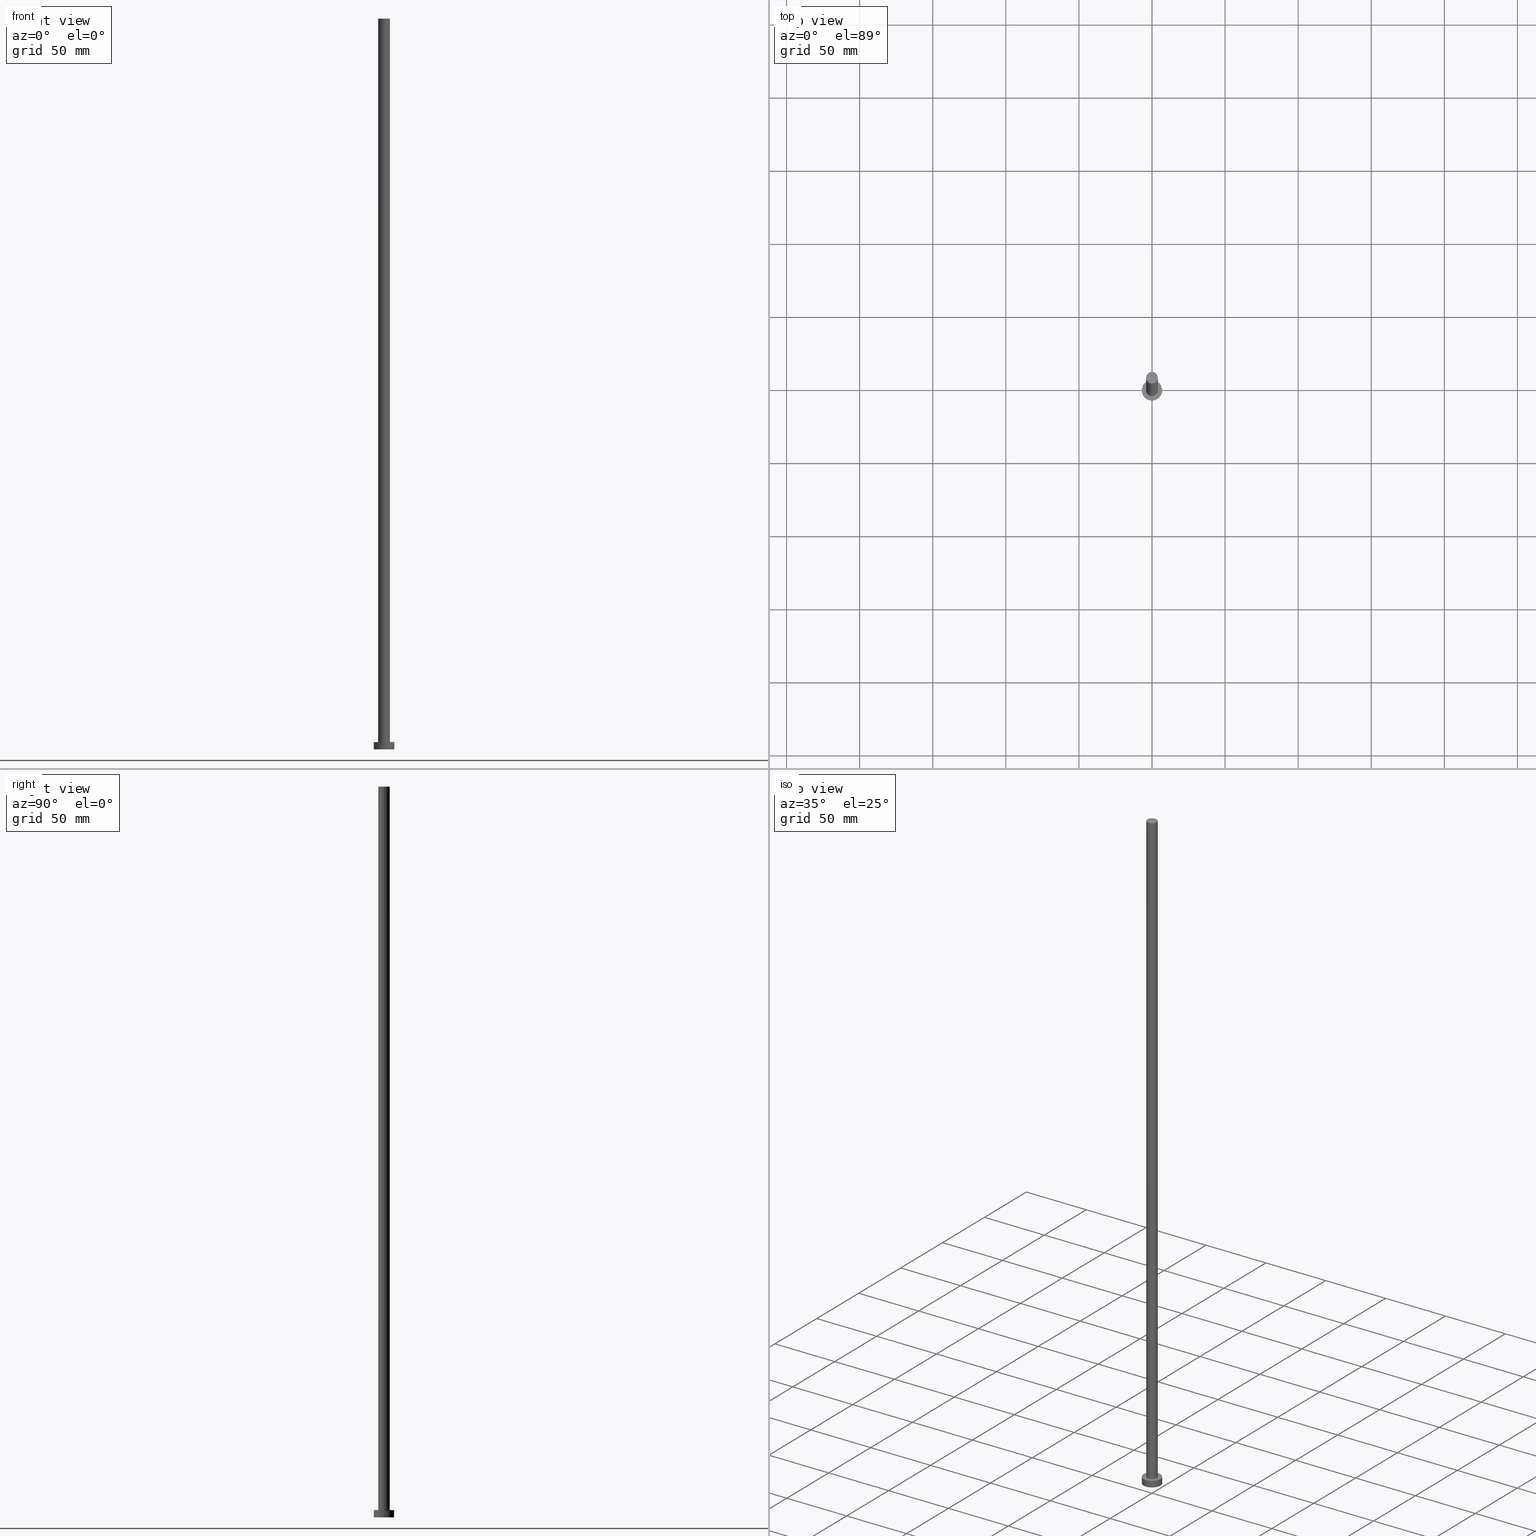
[diagram: canonical four-view strip — front | top / right | iso, engineering-drawing reading convention]
A machine part, canonical four-view strip (front | top / right | iso — engineering-drawing reading convention). The complete STEP part file that produces these views, byte-faithful:
ISO-10303-21;
HEADER;
FILE_DESCRIPTION (( 'STEP AP203' ),
    '1' );
FILE_NAME ('98df.STEP',
    '2023-02-13T12:56:17',
    ( '' ),
    ( '' ),
    'SwSTEP 2.0',
    'SolidWorks 2019',
    '' );
FILE_SCHEMA (( 'CONFIG_CONTROL_DESIGN' ));
ENDSEC;

DATA;
#1 = CARTESIAN_POINT ( 'NONE',  ( 0.000000000000000000, 0.000000000000000000, 5.000000000000000000 ) ) ;
#2 = ADVANCED_FACE ( 'NONE', ( #240 ), #38, .T. ) ;
#3 = DIRECTION ( 'NONE',  ( 1.000000000000000000, 0.000000000000000000, 0.000000000000000000 ) ) ;
#4 = ORIENTED_EDGE ( 'NONE', *, *, #29, .F. ) ;
#5 = PERSON_AND_ORGANIZATION ( #75, #144 ) ;
#6 = VERTEX_POINT ( 'NONE', #229 ) ;
#7 = AXIS2_PLACEMENT_3D ( 'NONE', #56, #58, #102 ) ;
#8 = ORIENTED_EDGE ( 'NONE', *, *, #16, .T. ) ;
#9 = VECTOR ( 'NONE', #28, 1000.000000000000000 ) ;
#10 = ORIENTED_EDGE ( 'NONE', *, *, #177, .T. ) ;
#11 = VERTEX_POINT ( 'NONE', #169 ) ;
#12 = CC_DESIGN_PERSON_AND_ORGANIZATION_ASSIGNMENT ( #5, #69, ( #100 ) ) ;
#13 = AXIS2_PLACEMENT_3D ( 'NONE', #53, #178, #170 ) ;
#14 = LOCAL_TIME ( 13, 56, 17.00000000000000000, #48 ) ;
#15 = CARTESIAN_POINT ( 'NONE',  ( 7.000000000000000000, 8.572527594031473190E-16, 5.000000000000000000 ) ) ;
#16 = EDGE_CURVE ( 'NONE', #246, #192, #21, .T. ) ;
#17 =( GEOMETRIC_REPRESENTATION_CONTEXT ( 3 ) GLOBAL_UNCERTAINTY_ASSIGNED_CONTEXT ( ( #39 ) ) GLOBAL_UNIT_ASSIGNED_CONTEXT ( ( #101, #128, #184 ) ) REPRESENTATION_CONTEXT ( 'NONE', 'WORKASPACE' ) );
#18 = AXIS2_PLACEMENT_3D ( 'NONE', #108, #250, #134 ) ;
#19 = DIRECTION ( 'NONE',  ( -0.000000000000000000, -0.000000000000000000, -1.000000000000000000 ) ) ;
#20 = PERSON_AND_ORGANIZATION ( #75, #144 ) ;
#21 = CIRCLE ( 'NONE', #35, 4.000000000000000000 ) ;
#22 = APPROVAL_ROLE ( '' ) ;
#23 = CARTESIAN_POINT ( 'NONE',  ( 0.000000000000000000, 0.000000000000000000, 5.000000000000000000 ) ) ;
#24 = EDGE_CURVE ( 'NONE', #192, #153, #99, .T. ) ;
#25 = FACE_OUTER_BOUND ( 'NONE', #135, .T. ) ;
#26 = EDGE_LOOP ( 'NONE', ( #227, #70 ) ) ;
#27 = CARTESIAN_POINT ( 'NONE',  ( -4.000000000000000000, 0.000000000000000000, 500.0000000000000000 ) ) ;
#28 = DIRECTION ( 'NONE',  ( -0.000000000000000000, -0.000000000000000000, -1.000000000000000000 ) ) ;
#29 = EDGE_CURVE ( 'NONE', #153, #11, #66, .T. ) ;
#30 = AXIS2_PLACEMENT_3D ( 'NONE', #125, #90, #207 ) ;
#31 = DIRECTION ( 'NONE',  ( 0.000000000000000000, 0.000000000000000000, 1.000000000000000000 ) ) ;
#32 = CARTESIAN_POINT ( 'NONE',  ( 4.000000000000000000, 4.898587196589412829E-16, 500.0000000000000000 ) ) ;
#33 = LINE ( 'NONE', #203, #9 ) ;
#34 = CC_DESIGN_APPROVAL ( #76, ( #100 ) ) ;
#35 = AXIS2_PLACEMENT_3D ( 'NONE', #204, #156, #113 ) ;
#36 = EDGE_CURVE ( 'NONE', #11, #153, #89, .T. ) ;
#37 = APPROVAL_ROLE ( '' ) ;
#38 = CYLINDRICAL_SURFACE ( 'NONE', #30, 7.000000000000000000 ) ;
#39 = UNCERTAINTY_MEASURE_WITH_UNIT (LENGTH_MEASURE( 1.000000000000000082E-05 ), #101, 'distance_accuracy_value', 'NONE');
#40 = PERSON_AND_ORGANIZATION ( #75, #144 ) ;
#41 = SECURITY_CLASSIFICATION ( '', '', #210 ) ;
#42 = DATE_TIME_ROLE ( 'creation_date' ) ;
#43 = CC_DESIGN_PERSON_AND_ORGANIZATION_ASSIGNMENT ( #228, #165, ( #187 ) ) ;
#44 = APPROVAL_STATUS ( 'not_yet_approved' ) ;
#45 = CARTESIAN_POINT ( 'NONE',  ( 0.000000000000000000, 0.000000000000000000, 500.0000000000000000 ) ) ;
#46 = CC_DESIGN_SECURITY_CLASSIFICATION ( #41, ( #100 ) ) ;
#47 = DIRECTION ( 'NONE',  ( -1.000000000000000000, 0.000000000000000000, 0.000000000000000000 ) ) ;
#48 = COORDINATED_UNIVERSAL_TIME_OFFSET ( 1, 0, .AHEAD. ) ;
#49 = CARTESIAN_POINT ( 'NONE',  ( -7.000000000000000000, 0.000000000000000000, 5.000000000000000000 ) ) ;
#50 = ORIENTED_EDGE ( 'NONE', *, *, #36, .T. ) ;
#51 = EDGE_CURVE ( 'NONE', #77, #6, #195, .T. ) ;
#52 = EDGE_LOOP ( 'NONE', ( #110, #158, #194, #95 ) ) ;
#53 = CARTESIAN_POINT ( 'NONE',  ( 0.000000000000000000, 0.000000000000000000, 5.000000000000000000 ) ) ;
#54 = VECTOR ( 'NONE', #19, 1000.000000000000000 ) ;
#55 = DIRECTION ( 'NONE',  ( 0.000000000000000000, 0.000000000000000000, 1.000000000000000000 ) ) ;
#56 = CARTESIAN_POINT ( 'NONE',  ( 0.000000000000000000, 0.000000000000000000, 0.000000000000000000 ) ) ;
#57 = LOCAL_TIME ( 13, 56, 17.00000000000000000, #247 ) ;
#58 = DIRECTION ( 'NONE',  ( 0.000000000000000000, 0.000000000000000000, 1.000000000000000000 ) ) ;
#59 = DIRECTION ( 'NONE',  ( -0.000000000000000000, -0.000000000000000000, -1.000000000000000000 ) ) ;
#60 = PERSON_AND_ORGANIZATION ( #75, #144 ) ;
#61 = AXIS2_PLACEMENT_3D ( 'NONE', #23, #174, #109 ) ;
#62 = CC_DESIGN_PERSON_AND_ORGANIZATION_ASSIGNMENT ( #60, #149, ( #100 ) ) ;
#63 = CALENDAR_DATE ( 2023, 13, 2 ) ;
#64 = DATE_AND_TIME ( #225, #162 ) ;
#65 = EDGE_CURVE ( 'NONE', #217, #6, #166, .T. ) ;
#66 = CIRCLE ( 'NONE', #61, 4.000000000000000000 ) ;
#67 = COORDINATED_UNIVERSAL_TIME_OFFSET ( 1, 0, .AHEAD. ) ;
#68 = PLANE ( 'NONE',  #126 ) ;
#69 = PERSON_AND_ORGANIZATION_ROLE ( 'design_supplier' ) ;
#70 = ORIENTED_EDGE ( 'NONE', *, *, #65, .F. ) ;
#71 = SHAPE_DEFINITION_REPRESENTATION ( #116, #188 ) ;
#72 = DIRECTION ( 'NONE',  ( 0.000000000000000000, 0.000000000000000000, 1.000000000000000000 ) ) ;
#73 = EDGE_LOOP ( 'NONE', ( #91, #4 ) ) ;
#74 = APPLICATION_CONTEXT ( 'configuration controlled 3d designs of mechanical parts and assemblies' ) ;
#75 = PERSON ( 'NEUR�EN�', 'NEUR�EN�', 'NEUR�EN�', ('NEUR�EN�'), ('NEUR�EN�'), ('NEUR�EN�') ) ;
#76 = APPROVAL ( #150, 'NEUR�EN�' ) ;
#77 = VERTEX_POINT ( 'NONE', #49 ) ;
#78 = ADVANCED_FACE ( 'NONE', ( #25 ), #97, .T. ) ;
#79 = DIRECTION ( 'NONE',  ( 0.000000000000000000, 0.000000000000000000, 1.000000000000000000 ) ) ;
#80 = MANIFOLD_SOLID_BREP ( 'P�idat vysunut�m3', #221 ) ;
#81 = CC_DESIGN_DATE_AND_TIME_ASSIGNMENT ( #154, #93, ( #41 ) ) ;
#82 = FACE_OUTER_BOUND ( 'NONE', #176, .T. ) ;
#83 = APPROVAL_PERSON_ORGANIZATION ( #133, #223, #22 ) ;
#84 = APPROVAL_ROLE ( '' ) ;
#85 = DATE_AND_TIME ( #168, #179 ) ;
#86 = CIRCLE ( 'NONE', #185, 7.000000000000000000 ) ;
#87 = EDGE_CURVE ( 'NONE', #6, #217, #86, .T. ) ;
#88 = AXIS2_PLACEMENT_3D ( 'NONE', #159, #79, #235 ) ;
#89 = CIRCLE ( 'NONE', #13, 4.000000000000000000 ) ;
#90 = DIRECTION ( 'NONE',  ( -0.000000000000000000, -0.000000000000000000, -1.000000000000000000 ) ) ;
#91 = ORIENTED_EDGE ( 'NONE', *, *, #36, .F. ) ;
#92 = CARTESIAN_POINT ( 'NONE',  ( 4.000000000000000000, 4.898587196589412829E-16, 500.0000000000000000 ) ) ;
#93 = DATE_TIME_ROLE ( 'classification_date' ) ;
#94 = CIRCLE ( 'NONE', #202, 7.000000000000000000 ) ;
#95 = ORIENTED_EDGE ( 'NONE', *, *, #87, .T. ) ;
#96 = APPROVAL_STATUS ( 'not_yet_approved' ) ;
#97 = CYLINDRICAL_SURFACE ( 'NONE', #237, 4.000000000000000000 ) ;
#98 = ORIENTED_EDGE ( 'NONE', *, *, #244, .T. ) ;
#99 = LINE ( 'NONE', #92, #206 ) ;
#100 = PRODUCT_DEFINITION_FORMATION_WITH_SPECIFIED_SOURCE ( 'LIBOVOLN�', '', #191, .NOT_KNOWN. ) ;
#101 =( LENGTH_UNIT ( ) NAMED_UNIT ( * ) SI_UNIT ( .MILLI., .METRE. ) );
#102 = DIRECTION ( 'NONE',  ( 1.000000000000000000, 0.000000000000000000, -0.000000000000000000 ) ) ;
#103 = ADVANCED_FACE ( 'NONE', ( #155 ), #68, .T. ) ;
#104 = CARTESIAN_POINT ( 'NONE',  ( 0.000000000000000000, 0.000000000000000000, 5.000000000000000000 ) ) ;
#105 = CARTESIAN_POINT ( 'NONE',  ( 0.000000000000000000, 0.000000000000000000, 5.000000000000000000 ) ) ;
#106 = DESIGN_CONTEXT ( 'detailed design', #74, 'design' ) ;
#107 = PERSON_AND_ORGANIZATION ( #75, #144 ) ;
#108 = CARTESIAN_POINT ( 'NONE',  ( 0.000000000000000000, 0.000000000000000000, 0.000000000000000000 ) ) ;
#109 = DIRECTION ( 'NONE',  ( 1.000000000000000000, 0.000000000000000000, 0.000000000000000000 ) ) ;
#110 = ORIENTED_EDGE ( 'NONE', *, *, #122, .F. ) ;
#111 = CALENDAR_DATE ( 2023, 13, 2 ) ;
#112 = ORIENTED_EDGE ( 'NONE', *, *, #24, .F. ) ;
#113 = DIRECTION ( 'NONE',  ( 1.000000000000000000, 0.000000000000000000, 0.000000000000000000 ) ) ;
#114 = ORIENTED_EDGE ( 'NONE', *, *, #160, .T. ) ;
#115 = ADVANCED_FACE ( 'NONE', ( #200 ), #119, .F. ) ;
#116 = PRODUCT_DEFINITION_SHAPE ( 'NONE', 'NONE',  #187 ) ;
#117 = PLANE ( 'NONE',  #127 ) ;
#118 = AXIS2_PLACEMENT_3D ( 'NONE', #183, #59, #147 ) ;
#119 = PLANE ( 'NONE',  #7 ) ;
#120 = FACE_OUTER_BOUND ( 'NONE', #243, .T. ) ;
#121 = CARTESIAN_POINT ( 'NONE',  ( 7.000000000000000000, 8.572527594031473190E-16, 5.000000000000000000 ) ) ;
#122 = EDGE_CURVE ( 'NONE', #132, #217, #181, .T. ) ;
#123 = APPROVAL_DATE_TIME ( #85, #146 ) ;
#124 = MECHANICAL_CONTEXT ( 'NONE', #218, 'mechanical' ) ;
#125 = CARTESIAN_POINT ( 'NONE',  ( 0.000000000000000000, 0.000000000000000000, 5.000000000000000000 ) ) ;
#126 = AXIS2_PLACEMENT_3D ( 'NONE', #193, #31, #138 ) ;
#127 = AXIS2_PLACEMENT_3D ( 'NONE', #1, #180, #161 ) ;
#128 =( NAMED_UNIT ( * ) PLANE_ANGLE_UNIT ( ) SI_UNIT ( $, .RADIAN. ) );
#129 = DATE_AND_TIME ( #63, #238 ) ;
#130 = APPROVAL_PERSON_ORGANIZATION ( #107, #76, #84 ) ;
#131 = ORIENTED_EDGE ( 'NONE', *, *, #177, .F. ) ;
#132 = VERTEX_POINT ( 'NONE', #121 ) ;
#133 = PERSON_AND_ORGANIZATION ( #75, #144 ) ;
#134 = DIRECTION ( 'NONE',  ( 1.000000000000000000, 0.000000000000000000, 0.000000000000000000 ) ) ;
#135 = EDGE_LOOP ( 'NONE', ( #251, #232, #137, #212 ) ) ;
#136 = AXIS2_PLACEMENT_3D ( 'NONE', #104, #239, #145 ) ;
#137 = ORIENTED_EDGE ( 'NONE', *, *, #29, .T. ) ;
#138 = DIRECTION ( 'NONE',  ( 1.000000000000000000, 0.000000000000000000, -0.000000000000000000 ) ) ;
#139 = ORIENTED_EDGE ( 'NONE', *, *, #224, .T. ) ;
#140 = CC_DESIGN_PERSON_AND_ORGANIZATION_ASSIGNMENT ( #197, #231, ( #41 ) ) ;
#141 = CARTESIAN_POINT ( 'NONE',  ( 4.000000000000000000, 4.898587196589412829E-16, 5.000000000000000000 ) ) ;
#142 = DIRECTION ( 'NONE',  ( -0.000000000000000000, -0.000000000000000000, -1.000000000000000000 ) ) ;
#143 = ADVANCED_FACE ( 'NONE', ( #182 ), #236, .T. ) ;
#144 = ORGANIZATION ( 'NEUR�EN�', 'NEUR�EN�', '' ) ;
#145 = DIRECTION ( 'NONE',  ( 1.000000000000000000, 0.000000000000000000, 0.000000000000000000 ) ) ;
#146 = APPROVAL ( #44, 'NEUR�EN�' ) ;
#147 = DIRECTION ( 'NONE',  ( -1.000000000000000000, 0.000000000000000000, 0.000000000000000000 ) ) ;
#148 = COORDINATED_UNIVERSAL_TIME_OFFSET ( 1, 0, .AHEAD. ) ;
#149 = PERSON_AND_ORGANIZATION_ROLE ( 'creator' ) ;
#150 = APPROVAL_STATUS ( 'not_yet_approved' ) ;
#151 = DATE_AND_TIME ( #152, #14 ) ;
#152 = CALENDAR_DATE ( 2023, 13, 2 ) ;
#153 = VERTEX_POINT ( 'NONE', #141 ) ;
#154 = DATE_AND_TIME ( #111, #57 ) ;
#155 = FACE_OUTER_BOUND ( 'NONE', #234, .T. ) ;
#156 = DIRECTION ( 'NONE',  ( 0.000000000000000000, 0.000000000000000000, 1.000000000000000000 ) ) ;
#157 = ADVANCED_FACE ( 'NONE', ( #254, #82 ), #117, .T. ) ;
#158 = ORIENTED_EDGE ( 'NONE', *, *, #160, .F. ) ;
#159 = CARTESIAN_POINT ( 'NONE',  ( 0.000000000000000000, 0.000000000000000000, 500.0000000000000000 ) ) ;
#160 = EDGE_CURVE ( 'NONE', #77, #132, #252, .T. ) ;
#161 = DIRECTION ( 'NONE',  ( 1.000000000000000000, 0.000000000000000000, -0.000000000000000000 ) ) ;
#162 = LOCAL_TIME ( 13, 56, 17.00000000000000000, #230 ) ;
#163 = APPROVAL_DATE_TIME ( #129, #76 ) ;
#164 = EDGE_LOOP ( 'NONE', ( #131, #248, #215, #249 ) ) ;
#165 = PERSON_AND_ORGANIZATION_ROLE ( 'creator' ) ;
#166 = CIRCLE ( 'NONE', #18, 7.000000000000000000 ) ;
#167 = CC_DESIGN_APPROVAL ( #223, ( #41 ) ) ;
#168 = CALENDAR_DATE ( 2023, 13, 2 ) ;
#169 = CARTESIAN_POINT ( 'NONE',  ( -4.000000000000000000, 0.000000000000000000, 5.000000000000000000 ) ) ;
#170 = DIRECTION ( 'NONE',  ( 1.000000000000000000, 0.000000000000000000, 0.000000000000000000 ) ) ;
#171 = APPROVAL_DATE_TIME ( #151, #223 ) ;
#172 = VECTOR ( 'NONE', #199, 1000.000000000000000 ) ;
#173 = APPROVAL_PERSON_ORGANIZATION ( #40, #146, #37 ) ;
#174 = DIRECTION ( 'NONE',  ( 0.000000000000000000, 0.000000000000000000, 1.000000000000000000 ) ) ;
#175 = ORIENTED_EDGE ( 'NONE', *, *, #16, .F. ) ;
#176 = EDGE_LOOP ( 'NONE', ( #114, #10 ) ) ;
#177 = EDGE_CURVE ( 'NONE', #132, #77, #94, .T. ) ;
#178 = DIRECTION ( 'NONE',  ( 0.000000000000000000, 0.000000000000000000, 1.000000000000000000 ) ) ;
#179 = LOCAL_TIME ( 13, 56, 17.00000000000000000, #148 ) ;
#180 = DIRECTION ( 'NONE',  ( 0.000000000000000000, 0.000000000000000000, 1.000000000000000000 ) ) ;
#181 = LINE ( 'NONE', #15, #54 ) ;
#182 = FACE_OUTER_BOUND ( 'NONE', #164, .T. ) ;
#183 = CARTESIAN_POINT ( 'NONE',  ( 0.000000000000000000, 0.000000000000000000, 500.0000000000000000 ) ) ;
#184 =( NAMED_UNIT ( * ) SI_UNIT ( $, .STERADIAN. ) SOLID_ANGLE_UNIT ( ) );
#185 = AXIS2_PLACEMENT_3D ( 'NONE', #233, #72, #3 ) ;
#186 = APPLICATION_PROTOCOL_DEFINITION ( 'international standard', 'config_control_design', 1994, #218 ) ;
#187 = PRODUCT_DEFINITION ( 'NEZN�M�', '', #100, #106 ) ;
#188 = ADVANCED_BREP_SHAPE_REPRESENTATION ( '98df', ( #80, #222 ), #17 ) ;
#189 = CC_DESIGN_DATE_AND_TIME_ASSIGNMENT ( #64, #42, ( #187 ) ) ;
#190 = DIRECTION ( 'NONE',  ( -0.000000000000000000, -0.000000000000000000, -1.000000000000000000 ) ) ;
#191 = PRODUCT ( '98df', '98df', '', ( #124 ) ) ;
#192 = VERTEX_POINT ( 'NONE', #32 ) ;
#193 = CARTESIAN_POINT ( 'NONE',  ( 0.000000000000000000, 0.000000000000000000, 500.0000000000000000 ) ) ;
#194 = ORIENTED_EDGE ( 'NONE', *, *, #51, .T. ) ;
#195 = LINE ( 'NONE', #214, #172 ) ;
#196 = AXIS2_PLACEMENT_3D ( 'NONE', #105, #142, #219 ) ;
#197 = PERSON_AND_ORGANIZATION ( #75, #144 ) ;
#198 = CC_DESIGN_PERSON_AND_ORGANIZATION_ASSIGNMENT ( #20, #242, ( #191 ) ) ;
#199 = DIRECTION ( 'NONE',  ( -0.000000000000000000, -0.000000000000000000, -1.000000000000000000 ) ) ;
#200 = FACE_OUTER_BOUND ( 'NONE', #26, .T. ) ;
#201 = CYLINDRICAL_SURFACE ( 'NONE', #118, 4.000000000000000000 ) ;
#202 = AXIS2_PLACEMENT_3D ( 'NONE', #220, #55, #253 ) ;
#203 = CARTESIAN_POINT ( 'NONE',  ( -4.000000000000000000, 0.000000000000000000, 500.0000000000000000 ) ) ;
#204 = CARTESIAN_POINT ( 'NONE',  ( 0.000000000000000000, 0.000000000000000000, 500.0000000000000000 ) ) ;
#205 = DIRECTION ( 'NONE',  ( 1.000000000000000000, 0.000000000000000000, 0.000000000000000000 ) ) ;
#206 = VECTOR ( 'NONE', #245, 1000.000000000000000 ) ;
#207 = DIRECTION ( 'NONE',  ( -1.000000000000000000, 0.000000000000000000, 0.000000000000000000 ) ) ;
#208 = DIRECTION ( 'NONE',  ( 0.000000000000000000, 0.000000000000000000, 1.000000000000000000 ) ) ;
#209 = PRODUCT_RELATED_PRODUCT_CATEGORY ( 'detail', '', ( #191 ) ) ;
#210 = SECURITY_CLASSIFICATION_LEVEL ( 'unclassified' ) ;
#211 = CC_DESIGN_APPROVAL ( #146, ( #187 ) ) ;
#212 = ORIENTED_EDGE ( 'NONE', *, *, #224, .F. ) ;
#213 = ADVANCED_FACE ( 'NONE', ( #120 ), #201, .T. ) ;
#214 = CARTESIAN_POINT ( 'NONE',  ( -7.000000000000000000, 0.000000000000000000, 5.000000000000000000 ) ) ;
#215 = ORIENTED_EDGE ( 'NONE', *, *, #65, .T. ) ;
#216 = CARTESIAN_POINT ( 'NONE',  ( 7.000000000000000000, 8.572527594031473190E-16, 0.000000000000000000 ) ) ;
#217 = VERTEX_POINT ( 'NONE', #216 ) ;
#218 = APPLICATION_CONTEXT ( 'configuration controlled 3d designs of mechanical parts and assemblies' ) ;
#219 = DIRECTION ( 'NONE',  ( -1.000000000000000000, 0.000000000000000000, 0.000000000000000000 ) ) ;
#220 = CARTESIAN_POINT ( 'NONE',  ( 0.000000000000000000, 0.000000000000000000, 5.000000000000000000 ) ) ;
#221 = CLOSED_SHELL ( 'NONE', ( #78, #143, #2, #157, #115, #213, #103 ) ) ;
#222 = AXIS2_PLACEMENT_3D ( 'NONE', #241, #208, #205 ) ;
#223 = APPROVAL ( #96, 'NEUR�EN�' ) ;
#224 = EDGE_CURVE ( 'NONE', #246, #11, #33, .T. ) ;
#225 = CALENDAR_DATE ( 2023, 13, 2 ) ;
#226 = APPLICATION_PROTOCOL_DEFINITION ( 'international standard', 'config_control_design', 1994, #74 ) ;
#227 = ORIENTED_EDGE ( 'NONE', *, *, #87, .F. ) ;
#228 = PERSON_AND_ORGANIZATION ( #75, #144 ) ;
#229 = CARTESIAN_POINT ( 'NONE',  ( -7.000000000000000000, 0.000000000000000000, 0.000000000000000000 ) ) ;
#230 = COORDINATED_UNIVERSAL_TIME_OFFSET ( 1, 0, .AHEAD. ) ;
#231 = PERSON_AND_ORGANIZATION_ROLE ( 'classification_officer' ) ;
#232 = ORIENTED_EDGE ( 'NONE', *, *, #24, .T. ) ;
#233 = CARTESIAN_POINT ( 'NONE',  ( 0.000000000000000000, 0.000000000000000000, 0.000000000000000000 ) ) ;
#234 = EDGE_LOOP ( 'NONE', ( #8, #98 ) ) ;
#235 = DIRECTION ( 'NONE',  ( 1.000000000000000000, 0.000000000000000000, 0.000000000000000000 ) ) ;
#236 = CYLINDRICAL_SURFACE ( 'NONE', #196, 7.000000000000000000 ) ;
#237 = AXIS2_PLACEMENT_3D ( 'NONE', #45, #190, #47 ) ;
#238 = LOCAL_TIME ( 13, 56, 17.00000000000000000, #67 ) ;
#239 = DIRECTION ( 'NONE',  ( 0.000000000000000000, 0.000000000000000000, 1.000000000000000000 ) ) ;
#240 = FACE_OUTER_BOUND ( 'NONE', #52, .T. ) ;
#241 = CARTESIAN_POINT ( 'NONE',  ( 0.000000000000000000, 0.000000000000000000, 0.000000000000000000 ) ) ;
#242 = PERSON_AND_ORGANIZATION_ROLE ( 'design_owner' ) ;
#243 = EDGE_LOOP ( 'NONE', ( #112, #175, #139, #50 ) ) ;
#244 = EDGE_CURVE ( 'NONE', #192, #246, #255, .T. ) ;
#245 = DIRECTION ( 'NONE',  ( -0.000000000000000000, -0.000000000000000000, -1.000000000000000000 ) ) ;
#246 = VERTEX_POINT ( 'NONE', #27 ) ;
#247 = COORDINATED_UNIVERSAL_TIME_OFFSET ( 1, 0, .AHEAD. ) ;
#248 = ORIENTED_EDGE ( 'NONE', *, *, #122, .T. ) ;
#249 = ORIENTED_EDGE ( 'NONE', *, *, #51, .F. ) ;
#250 = DIRECTION ( 'NONE',  ( 0.000000000000000000, 0.000000000000000000, 1.000000000000000000 ) ) ;
#251 = ORIENTED_EDGE ( 'NONE', *, *, #244, .F. ) ;
#252 = CIRCLE ( 'NONE', #136, 7.000000000000000000 ) ;
#253 = DIRECTION ( 'NONE',  ( 1.000000000000000000, 0.000000000000000000, 0.000000000000000000 ) ) ;
#254 = FACE_BOUND ( 'NONE', #73, .T. ) ;
#255 = CIRCLE ( 'NONE', #88, 4.000000000000000000 ) ;
ENDSEC;
END-ISO-10303-21;
